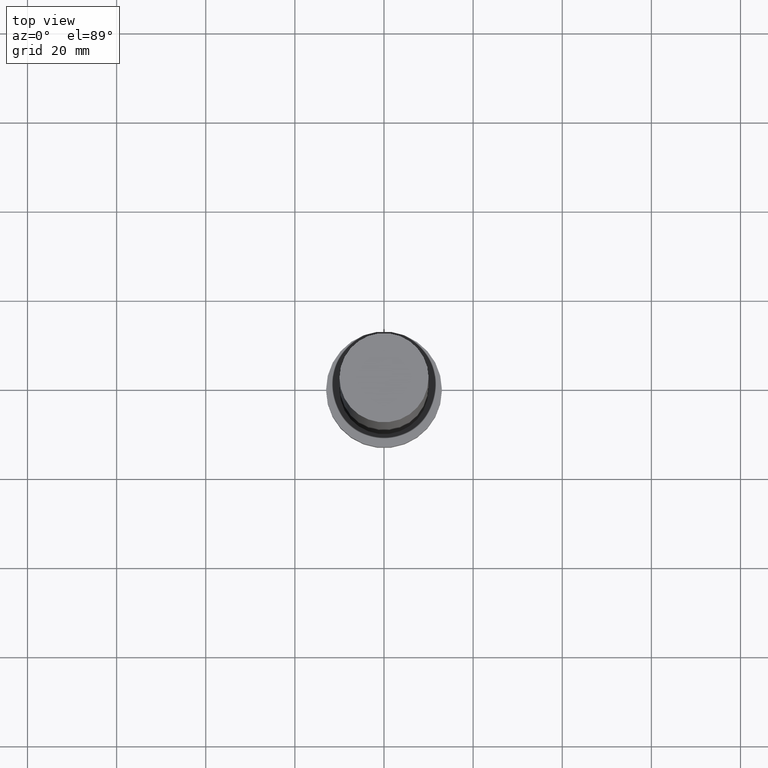
[diagram: clean part render]
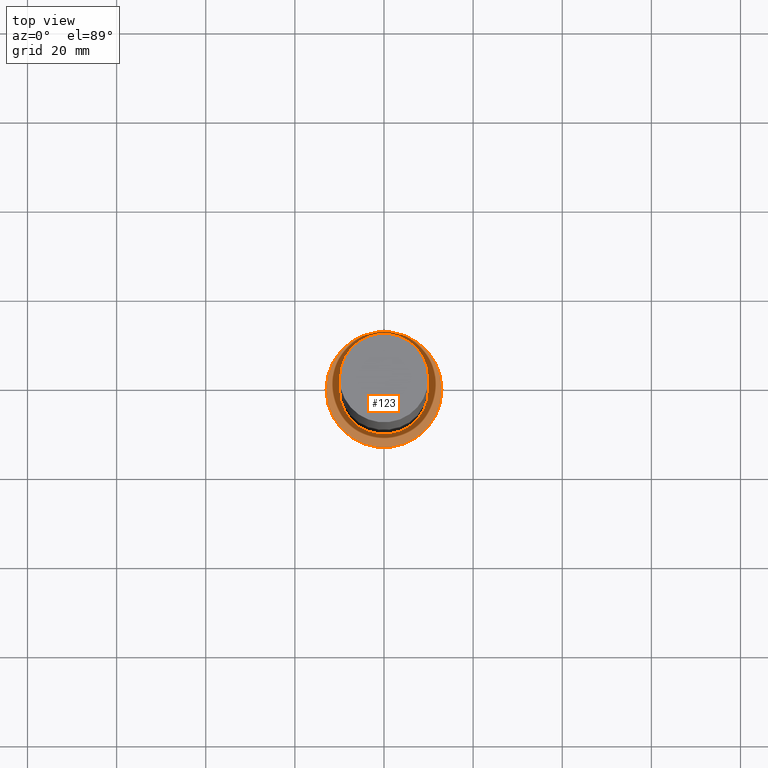
[diagram: same view with one face highlighted and labeled with its STEP entity id]
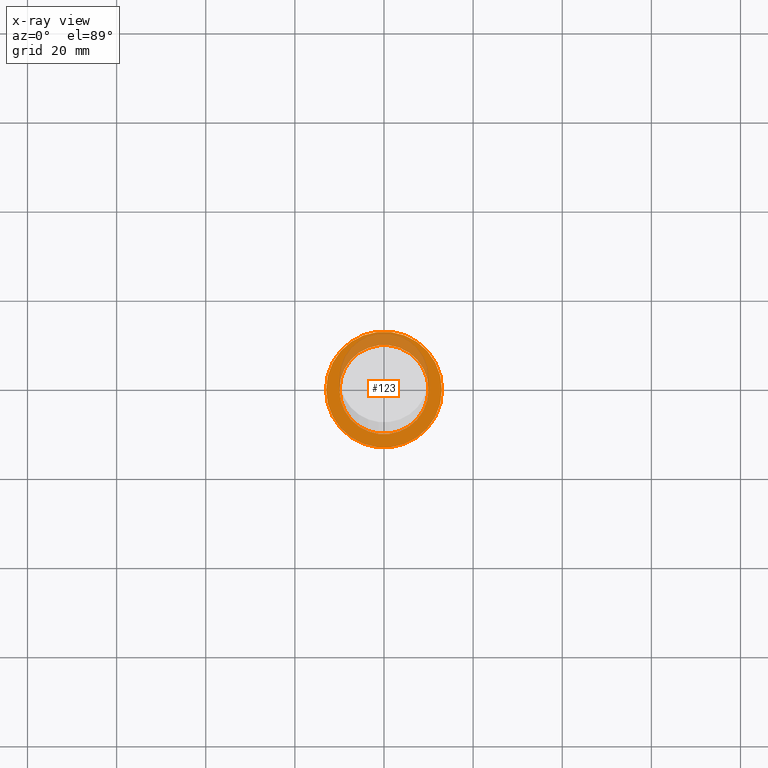
[diagram: x-ray of the same camera — body ghosted, the highlighted face saturated]
A machine part, top view. The second image highlights one B-rep face of the part: STEP entity #123.
The next image is the same camera in x-ray: the body ghosted, the highlighted face saturated — about 25% of this face is hidden behind the body in this view.
In plain terms, the highlighted planar face has unit normal (0, 0, 1).
Its self-contained STEP definition (entity closure, byte-faithful):
#22 = CARTESIAN_POINT ( 'NONE',  ( 0.000000000000000000, 0.000000000000000000, 8.000000000000000000 ) ) ;
#25 = CARTESIAN_POINT ( 'NONE',  ( 0.000000000000000000, 0.000000000000000000, 8.000000000000000000 ) ) ;
#28 = VERTEX_POINT ( 'NONE', #184 ) ;
#33 = AXIS2_PLACEMENT_3D ( 'NONE', #118, #83, #50 ) ;
#38 = CIRCLE ( 'NONE', #176, 10.00000000000000000 ) ;
#44 = DIRECTION ( 'NONE',  ( 0.000000000000000000, 0.000000000000000000, 1.000000000000000000 ) ) ;
#50 = DIRECTION ( 'NONE',  ( 1.000000000000000000, 0.000000000000000000, 0.000000000000000000 ) ) ;
#73 = ORIENTED_EDGE ( 'NONE', *, *, #222, .T. ) ;
#76 = CARTESIAN_POINT ( 'NONE',  ( -10.00000000000000000, 0.000000000000000000, 8.000000000000000000 ) ) ;
#80 = ORIENTED_EDGE ( 'NONE', *, *, #86, .F. ) ;
#83 = DIRECTION ( 'NONE',  ( 0.000000000000000000, 0.000000000000000000, 1.000000000000000000 ) ) ;
#86 = EDGE_CURVE ( 'NONE', #164, #211, #87, .T. ) ;
#87 = CIRCLE ( 'NONE', #132, 10.00000000000000000 ) ;
#94 = DIRECTION ( 'NONE',  ( 0.000000000000000000, 0.000000000000000000, 1.000000000000000000 ) ) ;
#95 = CARTESIAN_POINT ( 'NONE',  ( 0.000000000000000000, 0.000000000000000000, 8.000000000000000000 ) ) ;
#100 = DIRECTION ( 'NONE',  ( 1.000000000000000000, 0.000000000000000000, 0.000000000000000000 ) ) ;
#102 = EDGE_LOOP ( 'NONE', ( #147, #73 ) ) ;
#113 = FACE_OUTER_BOUND ( 'NONE', #102, .T. ) ;
#114 = DIRECTION ( 'NONE',  ( 0.000000000000000000, 0.000000000000000000, 1.000000000000000000 ) ) ;
#118 = CARTESIAN_POINT ( 'NONE',  ( 0.000000000000000000, 0.000000000000000000, 8.000000000000000000 ) ) ;
#123 = ADVANCED_FACE ( 'NONE', ( #172, #113 ), #171, .T. ) ;
#129 = VERTEX_POINT ( 'NONE', #133 ) ;
#132 = AXIS2_PLACEMENT_3D ( 'NONE', #153, #234, #156 ) ;
#133 = CARTESIAN_POINT ( 'NONE',  ( 13.00000000000000178, 1.592040838891559293E-15, 8.000000000000000000 ) ) ;
#135 = CIRCLE ( 'NONE', #33, 13.00000000000000178 ) ;
#147 = ORIENTED_EDGE ( 'NONE', *, *, #238, .T. ) ;
#153 = CARTESIAN_POINT ( 'NONE',  ( 0.000000000000000000, 0.000000000000000000, 8.000000000000000000 ) ) ;
#156 = DIRECTION ( 'NONE',  ( 1.000000000000000000, 0.000000000000000000, 0.000000000000000000 ) ) ;
#162 = DIRECTION ( 'NONE',  ( 1.000000000000000000, 0.000000000000000000, 0.000000000000000000 ) ) ;
#164 = VERTEX_POINT ( 'NONE', #76 ) ;
#171 = PLANE ( 'NONE',  #241 ) ;
#172 = FACE_BOUND ( 'NONE', #246, .T. ) ;
#176 = AXIS2_PLACEMENT_3D ( 'NONE', #25, #114, #162 ) ;
#184 = CARTESIAN_POINT ( 'NONE',  ( -13.00000000000000178, 0.000000000000000000, 8.000000000000000000 ) ) ;
#211 = VERTEX_POINT ( 'NONE', #237 ) ;
#217 = EDGE_CURVE ( 'NONE', #211, #164, #38, .T. ) ;
#222 = EDGE_CURVE ( 'NONE', #129, #28, #224, .T. ) ;
#224 = CIRCLE ( 'NONE', #252, 13.00000000000000178 ) ;
#233 = ORIENTED_EDGE ( 'NONE', *, *, #217, .F. ) ;
#234 = DIRECTION ( 'NONE',  ( 0.000000000000000000, 0.000000000000000000, 1.000000000000000000 ) ) ;
#237 = CARTESIAN_POINT ( 'NONE',  ( 10.00000000000000000, 1.224646799147353256E-15, 8.000000000000000000 ) ) ;
#238 = EDGE_CURVE ( 'NONE', #28, #129, #135, .T. ) ;
#241 = AXIS2_PLACEMENT_3D ( 'NONE', #22, #94, #253 ) ;
#246 = EDGE_LOOP ( 'NONE', ( #80, #233 ) ) ;
#252 = AXIS2_PLACEMENT_3D ( 'NONE', #95, #44, #100 ) ;
#253 = DIRECTION ( 'NONE',  ( 1.000000000000000000, 0.000000000000000000, -0.000000000000000000 ) ) ;